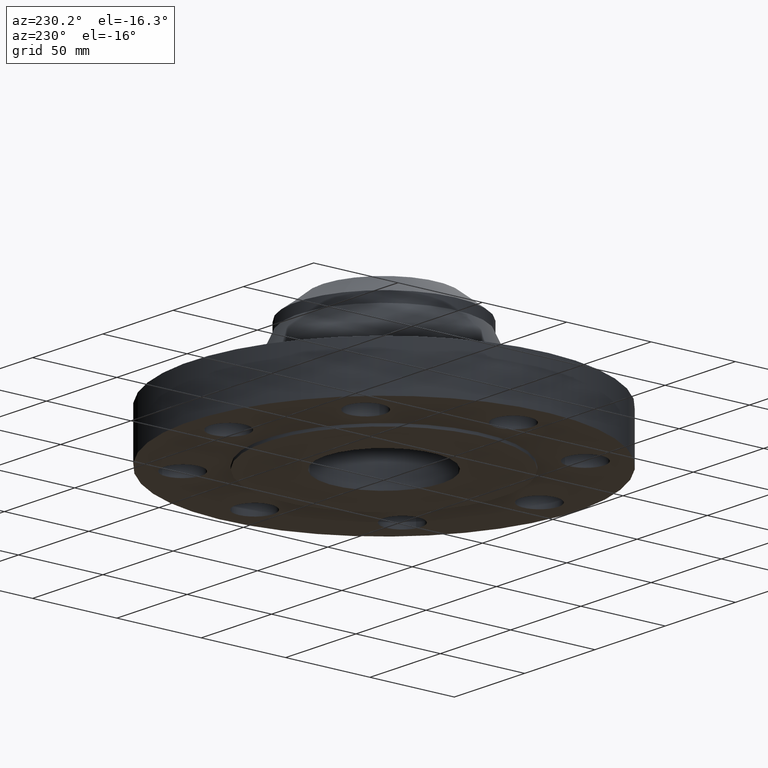
[diagram: clean part render]
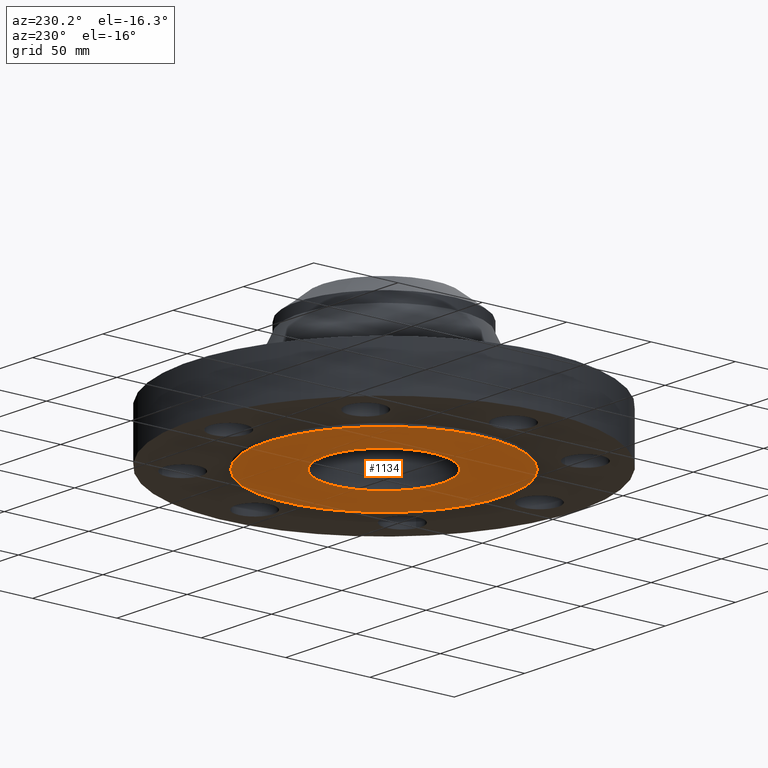
[diagram: same view with one face highlighted and labeled with its STEP entity id]
A machine part, auxiliary view. The second image highlights one B-rep face of the part: STEP entity #1134.
In plain terms, the highlighted planar face has unit normal (0, 0, -1).
Its self-contained STEP definition (entity closure, byte-faithful):
#617=AXIS2_PLACEMENT_3D('Circle Axis2P3D',#615,#616,$) ;
#1110=AXIS2_PLACEMENT_3D('Plane Axis2P3D',#1107,#1108,#1109) ;
#1118=AXIS2_PLACEMENT_3D('Circle Axis2P3D',#1116,#1117,$) ;
#1127=AXIS2_PLACEMENT_3D('Circle Axis2P3D',#1125,#1126,$) ;
#566=CARTESIAN_POINT('Control Point',(1.31842023117,2.41335204521,-0.0624999999671)) ;
#567=CARTESIAN_POINT('Control Point',(1.69750868396,2.20625507958,-0.0624999999688)) ;
#568=CARTESIAN_POINT('Control Point',(2.03593374263,1.9247242703,-0.0624999999704)) ;
#569=CARTESIAN_POINT('Control Point',(2.3141427514,1.57934576556,-0.0624999999721)) ;
#570=CARTESIAN_POINT('Control Point',(2.72014751978,0.798113024512,-0.0624999999754)) ;
#571=CARTESIAN_POINT('Control Point',(2.80060813891,-0.078636972015,-0.0624999999788)) ;
#572=CARTESIAN_POINT('Control Point',(2.75311213282,-0.51957993148,-0.0624999999804)) ;
#573=CARTESIAN_POINT('Control Point',(2.48778588885,-1.35908362528,-0.0624999999838)) ;
#574=CARTESIAN_POINT('Control Point',(1.9247242703,-2.03593374263,-0.0624999999871)) ;
#575=CARTESIAN_POINT('Control Point',(1.57934576556,-2.3141427514,-0.0624999999888)) ;
#576=CARTESIAN_POINT('Control Point',(0.798113024513,-2.72014751978,-0.0624999999921)) ;
#577=CARTESIAN_POINT('Control Point',(-0.0786369720145,-2.80060813891,-0.0624999999954)) ;
#578=CARTESIAN_POINT('Control Point',(-0.51957993148,-2.75311213282,-0.0624999999971)) ;
#579=CARTESIAN_POINT('Control Point',(-0.93933177838,-2.62044901084,-0.0624999999987)) ;
#580=CARTESIAN_POINT('Control Point',(-1.31842023117,-2.41335204521,-0.0625000000004)) ;
#581=CARTESIAN_POINT('Vertex',(1.31842023114,2.41335204523,-0.0625000000003)) ;
#583=CARTESIAN_POINT('Vertex',(-1.31842023114,-2.41335204517,-0.0625000000003)) ;
#615=CARTESIAN_POINT('Axis2P3D Location',(0.,0.,-0.0624999999671)) ;
#1107=CARTESIAN_POINT('Axis2P3D Location',(0.,1.36400000001,-0.0625000000003)) ;
#1116=CARTESIAN_POINT('Axis2P3D Location',(1.39870617276E-016,-5.60489537547E-012,-0.0625000000003)) ;
#1120=CARTESIAN_POINT('Vertex',(0.653936434662,1.19702261443,-0.0624999999671)) ;
#1122=CARTESIAN_POINT('Vertex',(-0.653936434661,-1.19702261443,-0.0624999999671)) ;
#1125=CARTESIAN_POINT('Axis2P3D Location',(-1.39870617276E-016,-5.60489537547E-012,-0.0625000000003)) ;
#616=DIRECTION('Axis2P3D Direction',(0.,0.,-0.0393700787402)) ;
#1108=DIRECTION('Axis2P3D Direction',(0.,0.,-0.0393700787402)) ;
#1109=DIRECTION('Axis2P3D XDirection',(0.0393700787402,0.,0.)) ;
#1117=DIRECTION('Axis2P3D Direction',(0.,0.,-0.0393700787402)) ;
#1126=DIRECTION('Axis2P3D Direction',(0.,0.,-0.0393700787402)) ;
#1113=ORIENTED_EDGE('',*,*,#619,.T.) ;
#1114=ORIENTED_EDGE('',*,*,#585,.T.) ;
#1131=ORIENTED_EDGE('',*,*,#1124,.F.) ;
#1132=ORIENTED_EDGE('',*,*,#1129,.F.) ;
#1133=FACE_BOUND('',#1130,.T.) ;
#1134=ADVANCED_FACE('PartBody',(#1115,#1133),#1111,.T.) ;
#565=B_SPLINE_CURVE_WITH_KNOTS('',5,(#566,#567,#568,#569,#570,#571,#572,#573,#574,#575,#576,#577,#578,#579,#580),.UNSPECIFIED.,.F.,.U.,(6,3,3,3,6),(-109.720123427,-54.8600617135,0.,54.8600617135,109.720123427),.UNSPECIFIED.) ;
#618=CIRCLE('generated circle',#617,2.75000000001) ;
#1119=CIRCLE('generated circle',#1118,1.364) ;
#1128=CIRCLE('generated circle',#1127,1.364) ;
#585=EDGE_CURVE('',#582,#584,#565,.T.) ;
#619=EDGE_CURVE('',#584,#582,#618,.T.) ;
#1124=EDGE_CURVE('',#1121,#1123,#1119,.T.) ;
#1129=EDGE_CURVE('',#1123,#1121,#1128,.T.) ;
#1112=EDGE_LOOP('',(#1113,#1114)) ;
#1130=EDGE_LOOP('',(#1131,#1132)) ;
#1115=FACE_OUTER_BOUND('',#1112,.T.) ;
#1111=PLANE('',#1110) ;
#582=VERTEX_POINT('',#581) ;
#584=VERTEX_POINT('',#583) ;
#1121=VERTEX_POINT('',#1120) ;
#1123=VERTEX_POINT('',#1122) ;